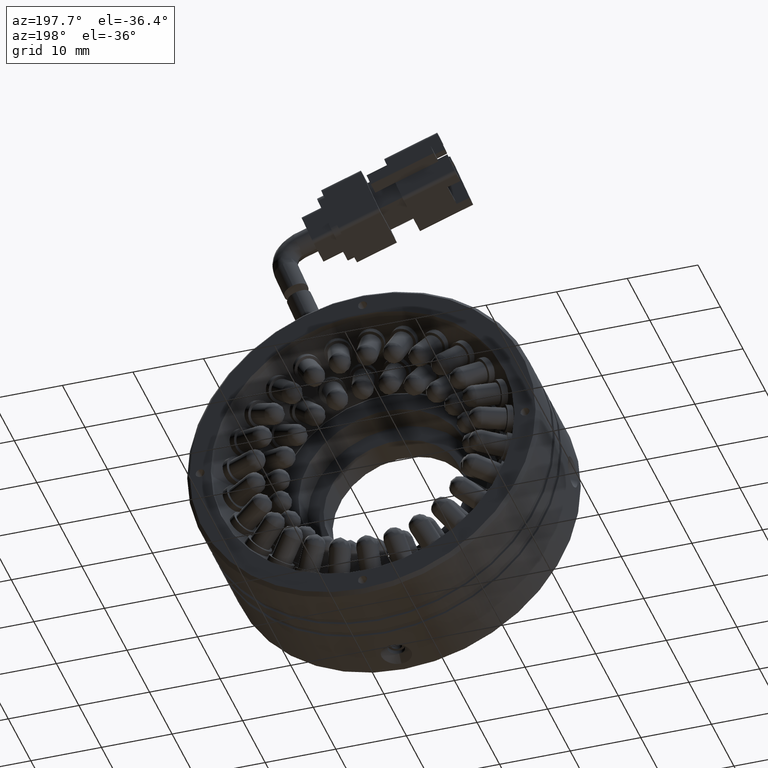
[diagram: clean part render]
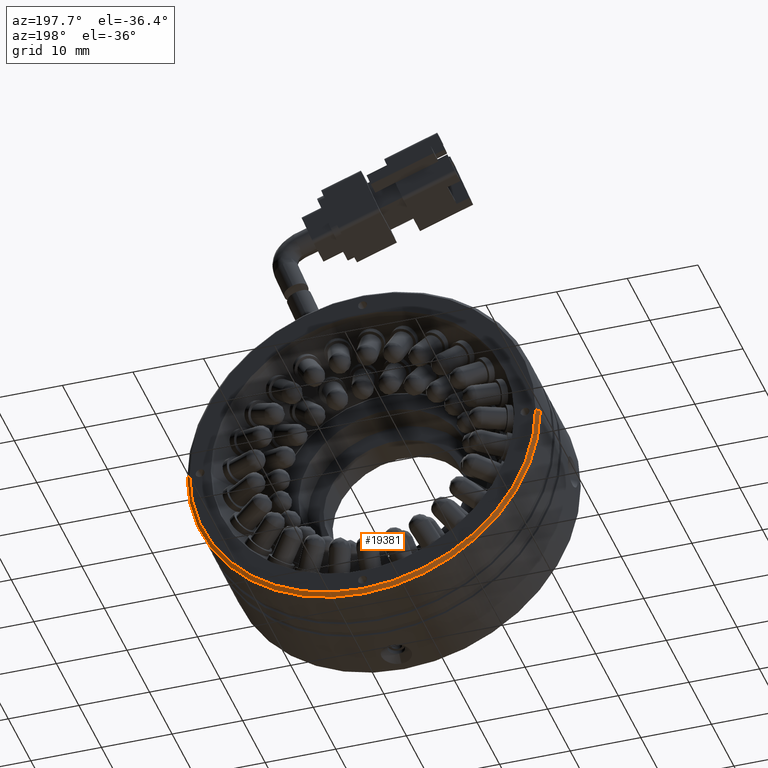
[diagram: same view with one face highlighted and labeled with its STEP entity id]
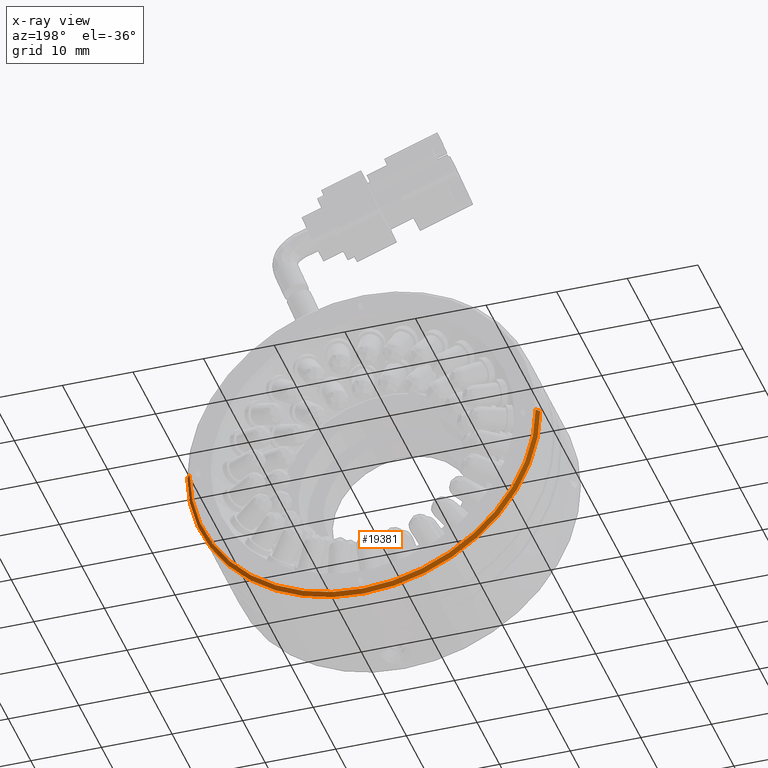
[diagram: x-ray of the same camera — body ghosted, the highlighted face saturated]
A machine part, auxiliary view. The second image highlights one B-rep face of the part: STEP entity #19381.
The next image is the same camera in x-ray: the body ghosted, the highlighted face saturated — about 0% of this face is hidden behind the body in this view.
In plain terms, the highlighted conical surface has half-angle 45 deg.
Its self-contained STEP definition (entity closure, byte-faithful):
#694 = ORIENTED_EDGE ( 'NONE', *, *, #16341, .T. ) ;
#2093 = CARTESIAN_POINT ( 'NONE',  ( -68.72635228848822900, 20.62753120665743000, 3.009265538105052700E-032 ) ) ;
#3425 = AXIS2_PLACEMENT_3D ( 'NONE', #18086, #17750, #17693 ) ;
#3537 = VECTOR ( 'NONE', #29782, 999.9999999999998900 ) ;
#6297 = DIRECTION ( 'NONE',  ( 1.040834085586084300E-016, -1.000000000000000000, -3.469446951953613600E-017 ) ) ;
#7035 = CARTESIAN_POINT ( 'NONE',  ( -69.22635228848821500, 21.12753120665742300, 1.734723475976778100E-017 ) ) ;
#11002 = VERTEX_POINT ( 'NONE', #33066 ) ;
#13061 = FACE_OUTER_BOUND ( 'NONE', #43368, .T. ) ;
#13970 = AXIS2_PLACEMENT_3D ( 'NONE', #24855, #25084, #22779 ) ;
#16341 = EDGE_CURVE ( 'NONE', #11002, #49760, #43400, .T. ) ;
#16674 = VERTEX_POINT ( 'NONE', #7035 ) ;
#17693 = DIRECTION ( 'NONE',  ( 1.000000000000000000, 1.387778780781445200E-016, 0.0000000000000000000 ) ) ;
#17750 = DIRECTION ( 'NONE',  ( -1.224646799147351500E-016, 1.000000000000000000, -0.0000000000000000000 ) ) ;
#18086 = CARTESIAN_POINT ( 'NONE',  ( -93.72635228848822900, 20.62753120665743000, 0.0000000000000000000 ) ) ;
#19381 = ADVANCED_FACE ( 'NONE', ( #13061 ), #48585, .T. ) ;
#19658 = LINE ( 'NONE', #33461, #28969 ) ;
#22779 = DIRECTION ( 'NONE',  ( 1.000000000000000000, 1.387778780781445200E-016, 0.0000000000000000000 ) ) ;
#23505 = EDGE_CURVE ( 'NONE', #35671, #16674, #32771, .T. ) ;
#23962 = CARTESIAN_POINT ( 'NONE',  ( -118.7263522884882400, 20.62753120665742700, 0.0000000000000000000 ) ) ;
#24491 = EDGE_CURVE ( 'NONE', #16674, #11002, #33806, .T. ) ;
#24855 = CARTESIAN_POINT ( 'NONE',  ( -93.72635228848822900, 20.62753120665742700, 3.009265538105052700E-032 ) ) ;
#25084 = DIRECTION ( 'NONE',  ( 1.040834085586084300E-016, -1.000000000000000000, -3.469446951953613600E-017 ) ) ;
#28969 = VECTOR ( 'NONE', #41390, 1000.000000000000000 ) ;
#29715 = EDGE_CURVE ( 'NONE', #35671, #49760, #19658, .T. ) ;
#29782 = DIRECTION ( 'NONE',  ( 0.7071067811865440200, -0.7071067811865511300, -2.453269466693411300E-017 ) ) ;
#29983 = CARTESIAN_POINT ( 'NONE',  ( -93.72635228848822900, 21.12753120665741900, 1.734723475976778100E-017 ) ) ;
#32060 = ORIENTED_EDGE ( 'NONE', *, *, #29715, .F. ) ;
#32771 = CIRCLE ( 'NONE', #40569, 24.50000000000002100 ) ;
#33066 = CARTESIAN_POINT ( 'NONE',  ( -68.72635228848822900, 20.62753120665743400, 3.061616997868383000E-015 ) ) ;
#33461 = CARTESIAN_POINT ( 'NONE',  ( -118.7263522884882400, 20.62753120665742700, 3.061616997868383800E-015 ) ) ;
#33806 = LINE ( 'NONE', #2093, #3537 ) ;
#33896 = DIRECTION ( 'NONE',  ( 1.000000000000000000, 1.416100796715759600E-016, 0.0000000000000000000 ) ) ;
#35671 = VERTEX_POINT ( 'NONE', #40357 ) ;
#39954 = ORIENTED_EDGE ( 'NONE', *, *, #23505, .T. ) ;
#40357 = CARTESIAN_POINT ( 'NONE',  ( -118.2263522884882600, 21.12753120665741600, 3.039674445269584900E-015 ) ) ;
#40569 = AXIS2_PLACEMENT_3D ( 'NONE', #29983, #6297, #33896 ) ;
#41390 = DIRECTION ( 'NONE',  ( -0.7071067811865436900, -0.7071067811865513500, 6.206291095661476300E-017 ) ) ;
#43368 = EDGE_LOOP ( 'NONE', ( #32060, #39954, #46625, #694 ) ) ;
#43400 = CIRCLE ( 'NONE', #3425, 25.00000000000000700 ) ;
#46625 = ORIENTED_EDGE ( 'NONE', *, *, #24491, .T. ) ;
#48585 = CONICAL_SURFACE ( 'NONE', #13970, 25.00000000000000700, 0.7853981633974430600 ) ;
#49760 = VERTEX_POINT ( 'NONE', #23962 ) ;